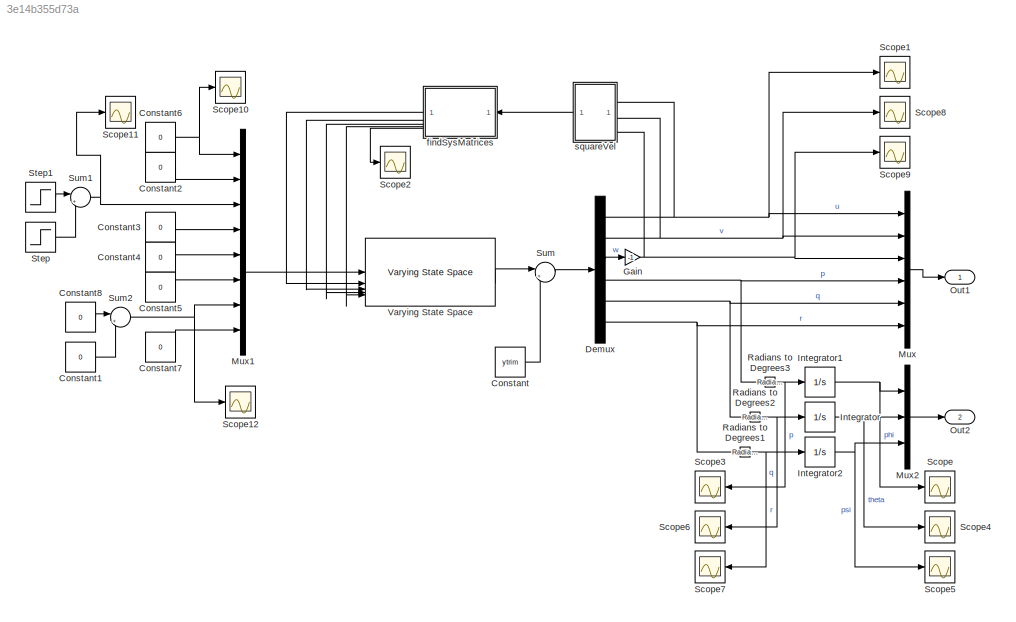
MODEL slx_3e14b355d73a
KIND model
CONFIG AbsTol = auto
CONFIG EnableMultiTasking = off
CONFIG FixedStep = auto
CONFIG MaxStep = auto
CONFIG MinStep = auto
CONFIG RelTol = 1e-3
CONFIG SampleTimeConstraint = Unconstrained
CONFIG SolverName = VariableStepAuto
CONFIG StartTime = 0.0
CONFIG StopTime = 14
BLOCK [Constant] Constant
  Value = ytrim
BLOCK [Constant] Constant1
  Value = 0
BLOCK [Constant] Constant2
  Value = 0
BLOCK [Constant] Constant3
  Value = 0
BLOCK [Constant] Constant4
  Value = 0
BLOCK [Constant] Constant5
  Value = 0
BLOCK [Constant] Constant6
  Value = 0
BLOCK [Constant] Constant7
  Value = 0
BLOCK [Constant] Constant8
  Value = 0
BLOCK [Demux] Demux
  Outputs = 6
BLOCK [Gain] Gain
  Gain = -1
BLOCK [Integrator] Integrator
BLOCK [Integrator] Integrator1
BLOCK [Integrator] Integrator2
BLOCK [Mux] Mux
  DisplayOption = bar
  Inputs = 6
BLOCK [Mux] Mux1
  DisplayOption = bar
  Inputs = 8
BLOCK [Mux] Mux2
  DisplayOption = bar
  Inputs = 3
BLOCK [Outport] Out1
BLOCK [Outport] Out2
  Port = 2
BLOCK [Reference] Radians to Degrees1  REF=simulink_extras/Transformations/Radians
to Degrees
  SourceBlock = simulink_extras/Transformations/Radians\nto Degrees
  SourceType = RadiansToDegrees
BLOCK [Reference] Radians to Degrees2  REF=simulink_extras/Transformations/Radians
to Degrees
  SourceBlock = simulink_extras/Transformations/Radians\nto Degrees
  SourceType = RadiansToDegrees
BLOCK [Reference] Radians to Degrees3  REF=simulink_extras/Transformations/Radians
to Degrees
  SourceBlock = simulink_extras/Transformations/Radians\nto Degrees
  SourceType = RadiansToDegrees
BLOCK [Scope] Scope
  Floating = off
  NumInputPorts = 1
  ScopeSpecificationString = Simulink.scopes.TimeScopeBlockCfg('CurrentConfiguration', extmgr.ConfigurationSet(extmgr.Configuration('Core','General UI',true),extmgr.Configuration('Core','Source UI',true),extmgr.Configuration('Sources','WiredSimulink',true,'DataLoggingVariableName','phi','DataLogging',true,'DataLoggingSaveFormat','Array'),extmgr.Configuration('Visuals','Time Domain',true,'SerializedDisplays',{struct('MinYLimRe...<+1406ch>
BLOCK [Scope] Scope1
  Floating = off
  NumInputPorts = 1
  ScopeSpecificationString = Simulink.scopes.TimeScopeBlockCfg('CurrentConfiguration', extmgr.ConfigurationSet(extmgr.Configuration('Core','General UI',true),extmgr.Configuration('Core','Source UI',true),extmgr.Configuration('Sources','WiredSimulink',true,'DataLoggingVariableName','u','DataLogging',true,'DataLoggingSaveFormat','Array'),extmgr.Configuration('Visuals','Time Domain',true,'SerializedDisplays',{struct('MinYLimReal...<+1425ch>
BLOCK [Scope] Scope10
  Floating = off
  NumInputPorts = 1
  ScopeSpecificationString = Simulink.scopes.TimeScopeBlockCfg('CurrentConfiguration', extmgr.ConfigurationSet(extmgr.Configuration('Core','General UI',true),extmgr.Configuration('Core','Source UI',true),extmgr.Configuration('Sources','WiredSimulink',true,'DataLoggingVariableName','theta_0','DataLogging',true,'DataLoggingSaveFormat','Array'),extmgr.Configuration('Visuals','Time Domain',true,'SerializedDisplays',{struct('MinYL...<+1451ch>
BLOCK [Scope] Scope11
  Floating = off
  NumInputPorts = 1
  ScopeSpecificationString = Simulink.scopes.TimeScopeBlockCfg('CurrentConfiguration', extmgr.ConfigurationSet(extmgr.Configuration('Core','General UI',true),extmgr.Configuration('Core','Source UI',true),extmgr.Configuration('Sources','WiredSimulink',true,'DataLoggingVariableName','theta_1s','DataLogging',true,'DataLoggingSaveFormat','Array'),extmgr.Configuration('Visuals','Time Domain',true,'SerializedDisplays',{struct('MinY...<+1447ch>
BLOCK [Scope] Scope12
  Floating = off
  NumInputPorts = 1
  ScopeSpecificationString = Simulink.scopes.TimeScopeBlockCfg('CurrentConfiguration', extmgr.ConfigurationSet(extmgr.Configuration('Core','General UI',true),extmgr.Configuration('Core','Source UI',true),extmgr.Configuration('Sources','WiredSimulink',true,'DataLoggingVariableName','delta_e','DataLogging',true,'DataLoggingSaveFormat','Array'),extmgr.Configuration('Visuals','Time Domain',true,'SerializedDisplays',{struct('MinYL...<+1446ch>
BLOCK [Scope] Scope2
  Floating = off
  NumInputPorts = 1
  ScopeSpecificationString = Simulink.scopes.TimeScopeBlockCfg('CurrentConfiguration', extmgr.ConfigurationSet(extmgr.Configuration('Core','General UI',true),extmgr.Configuration('Core','Source UI',true),extmgr.Configuration('Sources','WiredSimulink',true,'DataLoggingVariableName','ScopeData2'),extmgr.Configuration('Visuals','Time Domain',true,'SerializedDisplays',{struct('MinYLimReal','11.00000','MaxYLimReal','31.00000','YLa...<+1383ch>
BLOCK [Scope] Scope3
  Floating = off
  NumInputPorts = 1
  ScopeSpecificationString = Simulink.scopes.TimeScopeBlockCfg('CurrentConfiguration', extmgr.ConfigurationSet(extmgr.Configuration('Core','General UI',true),extmgr.Configuration('Core','Source UI',true),extmgr.Configuration('Sources','WiredSimulink',true,'DataLoggingVariableName','p','DataLogging',true,'DataLoggingSaveFormat','Array'),extmgr.Configuration('Visuals','Time Domain',true,'SerializedDisplays',{struct('MinYLimReal...<+1398ch>
BLOCK [Scope] Scope4
  Floating = off
  NumInputPorts = 1
  ScopeSpecificationString = Simulink.scopes.TimeScopeBlockCfg('CurrentConfiguration', extmgr.ConfigurationSet(extmgr.Configuration('Core','General UI',true),extmgr.Configuration('Core','Source UI',true),extmgr.Configuration('Sources','WiredSimulink',true,'DataLoggingVariableName','theta','DataLogging',true,'DataLoggingSaveFormat','Array'),extmgr.Configuration('Visuals','Time Domain',true,'SerializedDisplays',{struct('MinYLim...<+1410ch>
BLOCK [Scope] Scope5
  Floating = off
  NumInputPorts = 1
  ScopeSpecificationString = Simulink.scopes.TimeScopeBlockCfg('CurrentConfiguration', extmgr.ConfigurationSet(extmgr.Configuration('Core','General UI',true),extmgr.Configuration('Core','Source UI',true),extmgr.Configuration('Sources','WiredSimulink',true,'DataLoggingVariableName','psi','DataLogging',true,'DataLoggingSaveFormat','Array'),extmgr.Configuration('Visuals','Time Domain',true,'SerializedDisplays',{struct('MinYLimRe...<+1406ch>
BLOCK [Scope] Scope6
  Floating = off
  NumInputPorts = 1
  ScopeSpecificationString = Simulink.scopes.TimeScopeBlockCfg('CurrentConfiguration', extmgr.ConfigurationSet(extmgr.Configuration('Core','General UI',true),extmgr.Configuration('Core','Source UI',true),extmgr.Configuration('Sources','WiredSimulink',true,'DataLoggingVariableName','q','DataLogging',true,'DataLoggingSaveFormat','Array'),extmgr.Configuration('Visuals','Time Domain',true,'SerializedDisplays',{struct('MinYLimReal...<+1436ch>
BLOCK [Scope] Scope7
  Floating = off
  NumInputPorts = 1
  ScopeSpecificationString = Simulink.scopes.TimeScopeBlockCfg('CurrentConfiguration', extmgr.ConfigurationSet(extmgr.Configuration('Core','General UI',true),extmgr.Configuration('Core','Source UI',true),extmgr.Configuration('Sources','WiredSimulink',true,'DataLoggingVariableName','r','DataLogging',true,'DataLoggingSaveFormat','Array'),extmgr.Configuration('Visuals','Time Domain',true,'SerializedDisplays',{struct('MinYLimReal...<+1402ch>
BLOCK [Scope] Scope8
  Floating = off
  NumInputPorts = 1
  ScopeSpecificationString = Simulink.scopes.TimeScopeBlockCfg('CurrentConfiguration', extmgr.ConfigurationSet(extmgr.Configuration('Core','General UI',true),extmgr.Configuration('Core','Source UI',true),extmgr.Configuration('Sources','WiredSimulink',true,'DataLoggingVariableName','v','DataLogging',true,'DataLoggingSaveFormat','Array'),extmgr.Configuration('Visuals','Time Domain',true,'SerializedDisplays',{struct('MinYLimReal...<+1402ch>
BLOCK [Scope] Scope9
  Floating = off
  NumInputPorts = 1
  ScopeSpecificationString = Simulink.scopes.TimeScopeBlockCfg('CurrentConfiguration', extmgr.ConfigurationSet(extmgr.Configuration('Core','General UI',true),extmgr.Configuration('Core','Source UI',true),extmgr.Configuration('Sources','WiredSimulink',true,'DataLoggingVariableName','w','DataLogging',true,'DataLoggingSaveFormat','Array'),extmgr.Configuration('Visuals','Time Domain',true,'SerializedDisplays',{struct('MinYLimReal...<+1430ch>
BLOCK [Step] Step
  After = deg2rad(1)
  SampleTime = 0
  Time = 4
BLOCK [Step] Step1
  After = deg2rad(-1)
  SampleTime = 0
  Time = 4.5
BLOCK [Sum] Sum
  Inputs = |++
BLOCK [Sum] Sum1
  Inputs = |++
BLOCK [Sum] Sum2
  Inputs = |++
BLOCK [Reference] Varying State Space  REF=cstblocks/Linear Parameter Varying/Varying State Space
  SourceBlock = cstblocks/Linear Parameter Varying/Varying State Space
  SourceType = Varying State Space
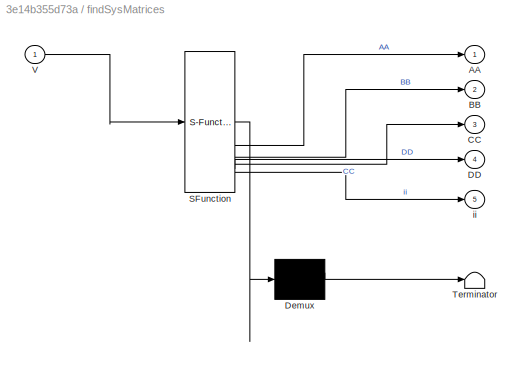
BLOCK [SubSystem] findSysMatrices
  ErrorFcn = Stateflow.Translate.translate
  LibrarySourceBlock = simulink/User-Defined\nFunctions/MATLAB Function
  PermitHierarchicalResolution = ExplicitOnly
  SFBlockType = MATLAB Function
  TreatAsAtomicUnit = on
BLOCK [Demux] findSysMatrices/ Demux 
  Outputs = 1
BLOCK [S-Function] findSysMatrices/ SFunction 
  EnableBusSupport = on
  FunctionName = sf_sfun
  Parameters = V_vals,contrDerivs,stabDerivs
  PortCounts = [1 6]
  SFcnIsStateOwnerBlock = off
  SFunctionDeploymentMode = off
  Tag = Stateflow S-Function 2
BLOCK [Terminator] findSysMatrices/ Terminator 
BLOCK [Outport] findSysMatrices/AA
BLOCK [Outport] findSysMatrices/BB
  Port = 2
BLOCK [Outport] findSysMatrices/CC
  Port = 3
BLOCK [Outport] findSysMatrices/DD
  Port = 4
BLOCK [Inport] findSysMatrices/V
BLOCK [Outport] findSysMatrices/ii
  Port = 5
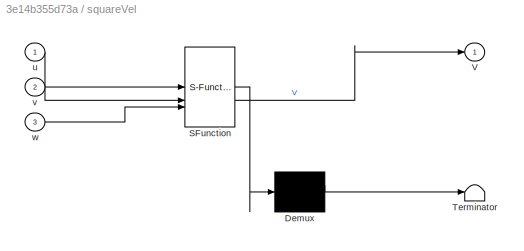
BLOCK [SubSystem] squareVel
  ErrorFcn = Stateflow.Translate.translate
  LibrarySourceBlock = simulink/User-Defined\nFunctions/MATLAB Function
  PermitHierarchicalResolution = ExplicitOnly
  SFBlockType = MATLAB Function
  TreatAsAtomicUnit = on
BLOCK [Demux] squareVel/ Demux 
  Outputs = 1
BLOCK [S-Function] squareVel/ SFunction 
  EnableBusSupport = on
  FunctionName = sf_sfun
  Parameters = trimvelocity
  PortCounts = [3 2]
  SFcnIsStateOwnerBlock = off
  SFunctionDeploymentMode = off
  Tag = Stateflow S-Function 1
BLOCK [Terminator] squareVel/ Terminator 
BLOCK [Outport] squareVel/V
BLOCK [Inport] squareVel/u
BLOCK [Inport] squareVel/v
  Port = 2
BLOCK [Inport] squareVel/w
  Port = 3
LINE Constant1:1 -> Sum2:2
LINE Constant2:1 -> Mux1:2
LINE Constant3:1 -> Mux1:4
LINE Constant4:1 -> Mux1:5
LINE Constant5:1 -> Mux1:6
NET Constant6:1 -> Mux1:1, Scope10:1
LINE Constant7:1 -> Mux1:8
LINE Constant8:1 -> Sum2:1
LINE Constant:1 -> Sum:2
NET Demux:1 -> Mux:1, Scope1:1, squareVel:1
NET Demux:2 -> Mux:2, Scope8:1, squareVel:2
LINE Demux:3 -> Gain:1
NET Demux:4 -> Mux:4, Radians to Degrees3:1
NET Demux:5 -> Mux:5, Radians to Degrees2:1
NET Demux:6 -> Mux:6, Radians to Degrees1:1
NET Gain:1 -> Mux:3, Scope9:1, squareVel:3
NET Integrator1:1 -> Mux2:1, Scope:1
NET Integrator2:1 -> Mux2:3, Scope5:1
NET Integrator:1 -> Mux2:2, Scope4:1
LINE Mux1:1 -> Varying State Space:1
LINE Mux2:1 -> Out2:1
LINE Mux:1 -> Out1:1
NET Radians to Degrees1:1 -> Integrator2:1, Scope7:1
NET Radians to Degrees2:1 -> Integrator:1, Scope6:1
NET Radians to Degrees3:1 -> Integrator1:1, Scope3:1
LINE Step1:1 -> Sum1:1
LINE Step:1 -> Sum1:2
NET Sum1:1 -> Mux1:3, Scope11:1
NET Sum2:1 -> Mux1:7, Scope12:1
LINE Sum:1 -> Demux:1
LINE Varying State Space:2 -> Sum:1
LINE findSysMatrices:1 -> Varying State Space:2
LINE findSysMatrices:2 -> Varying State Space:3
LINE findSysMatrices:3 -> Varying State Space:4
LINE findSysMatrices:4 -> Varying State Space:5
LINE findSysMatrices:5 -> Scope2:1
LINE squareVel:1 -> findSysMatrices:1
note: NET lines group one-source signal fan-out (src -> all destinations, sorted); 1:1 wires keep LINE
CHART squareVel states=1 transitions=1
  STATE_LABEL 'eML_blk_kernel()'
  STATE_LABEL 'SCRIPT:\nfunction V = fcn(u,v,w, trimvelocity)\n\nV = sqrt(u^2+v^2+w^2);\n'
CHART findSysMatrices states=1 transitions=1
  STATE_LABEL 'eML_blk_kernel()'
  STATE_LABEL 'SCRIPT:\nfunction [AA, BB, CC, DD, ii] = fcn(V, V_vals, stabDerivs, contrDerivs)\n\n    [~, ii] = min(abs(V_vals - V));\n   \n\n    X_u = stabDerivs(1,:); X_v = stabDerivs(2,:); X_w = stabDerivs(3,:); X_p = stabDerivs(4,:); X_q = stabDerivs(5,:); X_r = stabDerivs(6,:);\n    Y_u = stabDerivs(7,:); Y_v = stabDerivs(8,:); Y_w = stabDerivs(9,:); Y_p = stabDerivs(10,:); Y_q = stabDerivs(11,:); Y_r = stabDeriv...<+3406ch>'
CHART  states=0 transitions=0
CHART  states=0 transitions=0
